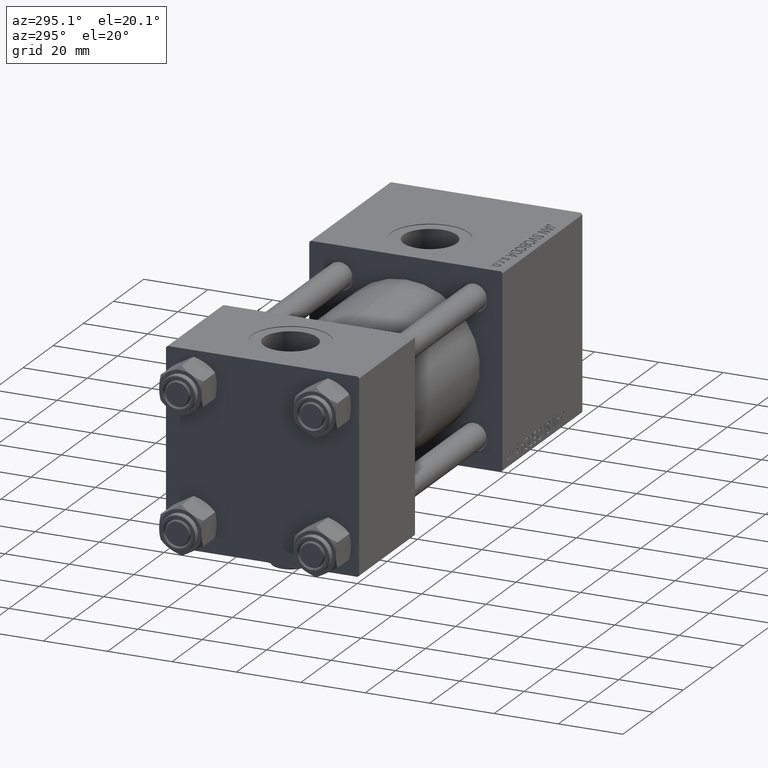
[diagram: clean part render]
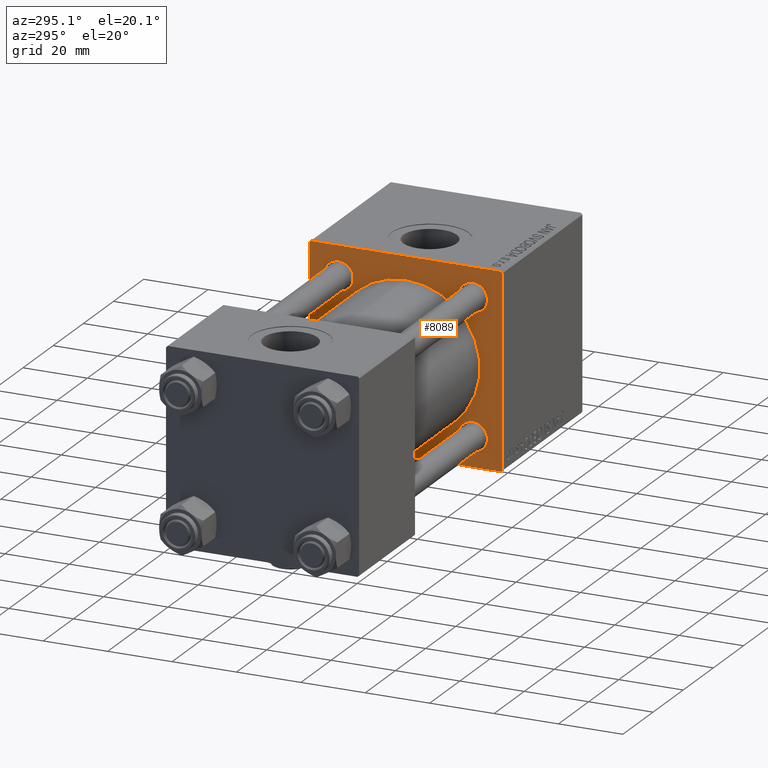
[diagram: same view with one face highlighted and labeled with its STEP entity id]
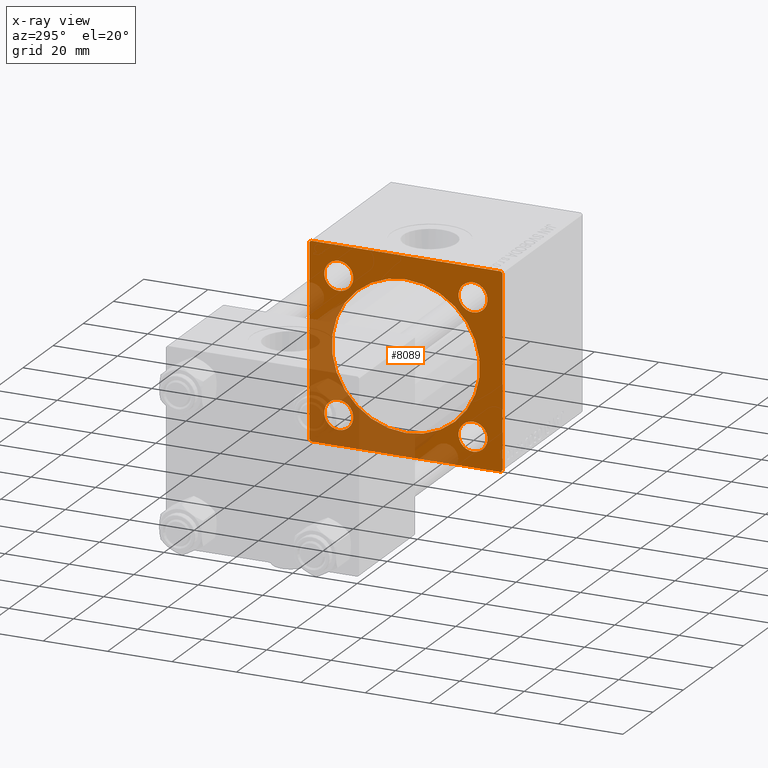
[diagram: x-ray of the same camera — body ghosted, the highlighted face saturated]
A machine part, auxiliary view. The second image highlights one B-rep face of the part: STEP entity #8089.
The next image is the same camera in x-ray: the body ghosted, the highlighted face saturated — about 36% of this face is hidden behind the body in this view.
In plain terms, the highlighted planar face has unit normal (-1, 0, 0).
Its self-contained STEP definition (entity closure, byte-faithful):
#2 = DIRECTION ( 'NONE',  ( 0.000000000000000000, -0.7071067811865474617, 0.7071067811865474617 ) ) ;
#22 = CIRCLE ( 'NONE', #20273, 23.00000000000000000 ) ;
#192 = ORIENTED_EDGE ( 'NONE', *, *, #16451, .T. ) ;
#356 = VERTEX_POINT ( 'NONE', #34967 ) ;
#1060 = CARTESIAN_POINT ( 'NONE',  ( 95.00000000000000000, 20.84999999999999787, 20.85000000000000142 ) ) ;
#1199 = CARTESIAN_POINT ( 'NONE',  ( 95.00000000000000000, 29.74999999999999645, 29.74999999999999645 ) ) ;
#1502 = LINE ( 'NONE', #25556, #11681 ) ;
#1533 = ORIENTED_EDGE ( 'NONE', *, *, #49053, .T. ) ;
#2451 = PLANE ( 'NONE',  #42088 ) ;
#2973 = FACE_BOUND ( 'NONE', #32806, .T. ) ;
#3077 = CARTESIAN_POINT ( 'NONE',  ( 95.00000000000000000, -20.84999999999999076, 25.35000000000001208 ) ) ;
#3202 = DIRECTION ( 'NONE',  ( 0.000000000000000000, 0.000000000000000000, 1.000000000000000000 ) ) ;
#5084 = DIRECTION ( 'NONE',  ( 0.000000000000000000, 0.000000000000000000, 1.000000000000000000 ) ) ;
#5185 = VECTOR ( 'NONE', #6116, 1000.000000000000000 ) ;
#6116 = DIRECTION ( 'NONE',  ( 0.000000000000000000, -1.000000000000000000, -1.156482317317871478E-16 ) ) ;
#6804 = ORIENTED_EDGE ( 'NONE', *, *, #45683, .T. ) ;
#6965 = CARTESIAN_POINT ( 'NONE',  ( 95.00000000000000000, -29.74999999999999645, 29.74999999999999645 ) ) ;
#6977 = EDGE_CURVE ( 'NONE', #23917, #11307, #46273, .T. ) ;
#7063 = ORIENTED_EDGE ( 'NONE', *, *, #11507, .T. ) ;
#7789 = VERTEX_POINT ( 'NONE', #28910 ) ;
#8089 = ADVANCED_FACE ( 'NONE', ( #38911, #46850, #2973, #39699, #26508, #26760 ), #2451, .T. ) ;
#8242 = VERTEX_POINT ( 'NONE', #21954 ) ;
#8765 = CARTESIAN_POINT ( 'NONE',  ( 95.00000000000000000, 20.84999999999999787, 25.35000000000000853 ) ) ;
#9062 = CARTESIAN_POINT ( 'NONE',  ( 95.00000000000000000, 30.00000000000000000, 29.50000000000000000 ) ) ;
#9373 = CIRCLE ( 'NONE', #33847, 4.500000000000007105 ) ;
#9432 = CARTESIAN_POINT ( 'NONE',  ( 95.00000000000000000, 30.00000000000000000, -29.99999999999999289 ) ) ;
#9612 = DIRECTION ( 'NONE',  ( 0.000000000000000000, 0.000000000000000000, -1.000000000000000000 ) ) ;
#9949 = LINE ( 'NONE', #9432, #50004 ) ;
#10025 = AXIS2_PLACEMENT_3D ( 'NONE', #31621, #27397, #39289 ) ;
#10425 = EDGE_CURVE ( 'NONE', #34446, #26097, #1502, .T. ) ;
#10651 = CARTESIAN_POINT ( 'NONE',  ( 95.00000000000000000, 0.000000000000000000, 0.000000000000000000 ) ) ;
#10894 = DIRECTION ( 'NONE',  ( 0.000000000000000000, 0.000000000000000000, 1.000000000000000000 ) ) ;
#11063 = DIRECTION ( 'NONE',  ( 0.000000000000000000, 0.000000000000000000, -1.000000000000000000 ) ) ;
#11307 = VERTEX_POINT ( 'NONE', #33497 ) ;
#11507 = EDGE_CURVE ( 'NONE', #45361, #39435, #18465, .T. ) ;
#11681 = VECTOR ( 'NONE', #50138, 1000.000000000000000 ) ;
#11842 = CARTESIAN_POINT ( 'NONE',  ( 95.00000000000000000, -29.50000000000000000, 29.99999999999999289 ) ) ;
#12393 = ORIENTED_EDGE ( 'NONE', *, *, #6977, .T. ) ;
#13361 = EDGE_CURVE ( 'NONE', #39974, #25262, #18595, .T. ) ;
#13779 = AXIS2_PLACEMENT_3D ( 'NONE', #17263, #45537, #25444 ) ;
#14461 = AXIS2_PLACEMENT_3D ( 'NONE', #48442, #36798, #5084 ) ;
#14650 = VECTOR ( 'NONE', #46638, 1000.000000000000114 ) ;
#14797 = ORIENTED_EDGE ( 'NONE', *, *, #26251, .T. ) ;
#14861 = DIRECTION ( 'NONE',  ( -1.000000000000000000, 0.000000000000000000, -0.000000000000000000 ) ) ;
#15220 = AXIS2_PLACEMENT_3D ( 'NONE', #19319, #30710, #3202 ) ;
#15319 = ORIENTED_EDGE ( 'NONE', *, *, #34786, .T. ) ;
#16008 = VERTEX_POINT ( 'NONE', #29274 ) ;
#16168 = ORIENTED_EDGE ( 'NONE', *, *, #32788, .T. ) ;
#16451 = EDGE_CURVE ( 'NONE', #50720, #16008, #38872, .T. ) ;
#17148 = CARTESIAN_POINT ( 'NONE',  ( 95.00000000000000000, 30.00000000000000000, -29.49999999999997868 ) ) ;
#17263 = CARTESIAN_POINT ( 'NONE',  ( 95.00000000000000000, -20.84999999999999076, 20.85000000000000497 ) ) ;
#17615 = ORIENTED_EDGE ( 'NONE', *, *, #13361, .T. ) ;
#17908 = ORIENTED_EDGE ( 'NONE', *, *, #48794, .T. ) ;
#18271 = CARTESIAN_POINT ( 'NONE',  ( 95.00000000000000000, 30.00000000000000000, 30.00000000000000000 ) ) ;
#18465 = CIRCLE ( 'NONE', #10025, 4.500000000000007105 ) ;
#18595 = LINE ( 'NONE', #6965, #51420 ) ;
#18808 = CARTESIAN_POINT ( 'NONE',  ( 95.00000000000000000, -2.602085213965210642E-15, 23.00000000000000000 ) ) ;
#18826 = CIRCLE ( 'NONE', #31515, 4.500000000000007105 ) ;
#19319 = CARTESIAN_POINT ( 'NONE',  ( 95.00000000000000000, 20.84999999999999787, 20.85000000000000142 ) ) ;
#19379 = CARTESIAN_POINT ( 'NONE',  ( 95.00000000000000000, 20.84999999999999787, -16.34999999999999432 ) ) ;
#19449 = CARTESIAN_POINT ( 'NONE',  ( 95.00000000000000000, 20.84999999999999787, -25.35000000000000853 ) ) ;
#19588 = CARTESIAN_POINT ( 'NONE',  ( 95.00000000000000000, 29.50000000000000000, -29.99999999999999289 ) ) ;
#19736 = EDGE_LOOP ( 'NONE', ( #35276, #40863, #34611, #17615, #49199, #14797, #42695, #28015 ) ) ;
#19824 = EDGE_LOOP ( 'NONE', ( #6804, #12393 ) ) ;
#19986 = VERTEX_POINT ( 'NONE', #35360 ) ;
#20273 = AXIS2_PLACEMENT_3D ( 'NONE', #26684, #23236, #50467 ) ;
#21146 = DIRECTION ( 'NONE',  ( 0.000000000000000000, 0.000000000000000000, 1.000000000000000000 ) ) ;
#21954 = CARTESIAN_POINT ( 'NONE',  ( 95.00000000000000000, -30.00000000000000000, -29.49999999999998579 ) ) ;
#22242 = CARTESIAN_POINT ( 'NONE',  ( 95.00000000000000000, 29.74999999999999645, -29.74999999999999645 ) ) ;
#22358 = VERTEX_POINT ( 'NONE', #18808 ) ;
#22532 = DIRECTION ( 'NONE',  ( -0.000000000000000000, 0.000000000000000000, 1.000000000000000000 ) ) ;
#22766 = CIRCLE ( 'NONE', #28691, 23.00000000000000000 ) ;
#23236 = DIRECTION ( 'NONE',  ( 1.000000000000000000, 0.000000000000000000, 0.000000000000000000 ) ) ;
#23753 = VECTOR ( 'NONE', #29401, 1000.000000000000114 ) ;
#23917 = VERTEX_POINT ( 'NONE', #34898 ) ;
#24552 = EDGE_CURVE ( 'NONE', #52196, #7789, #9949, .T. ) ;
#24948 = ORIENTED_EDGE ( 'NONE', *, *, #39744, .T. ) ;
#25262 = VERTEX_POINT ( 'NONE', #11842 ) ;
#25444 = DIRECTION ( 'NONE',  ( 0.000000000000000000, 0.000000000000000000, 1.000000000000000000 ) ) ;
#25556 = CARTESIAN_POINT ( 'NONE',  ( 95.00000000000000000, 30.00000000000000000, 30.00000000000000000 ) ) ;
#25770 = LINE ( 'NONE', #1199, #14650 ) ;
#26097 = VERTEX_POINT ( 'NONE', #17148 ) ;
#26251 = EDGE_CURVE ( 'NONE', #50673, #34446, #25770, .T. ) ;
#26475 = LINE ( 'NONE', #18271, #5185 ) ;
#26508 = FACE_BOUND ( 'NONE', #31060, .T. ) ;
#26512 = CARTESIAN_POINT ( 'NONE',  ( 95.00000000000000000, -30.00000000000000000, 29.99999999999999289 ) ) ;
#26684 = CARTESIAN_POINT ( 'NONE',  ( 95.00000000000000000, -2.602085213965210642E-15, 0.000000000000000000 ) ) ;
#26760 = FACE_OUTER_BOUND ( 'NONE', #19736, .T. ) ;
#27397 = DIRECTION ( 'NONE',  ( 1.000000000000000000, -0.000000000000000000, 0.000000000000000000 ) ) ;
#28015 = ORIENTED_EDGE ( 'NONE', *, *, #41489, .T. ) ;
#28297 = CARTESIAN_POINT ( 'NONE',  ( 95.00000000000000000, -20.84999999999999076, -20.85000000000000497 ) ) ;
#28691 = AXIS2_PLACEMENT_3D ( 'NONE', #35363, #52273, #11063 ) ;
#28910 = CARTESIAN_POINT ( 'NONE',  ( 95.00000000000000000, -29.50000000000000000, -30.00000000000000000 ) ) ;
#29091 = DIRECTION ( 'NONE',  ( 1.000000000000000000, -0.000000000000000000, 0.000000000000000000 ) ) ;
#29130 = EDGE_LOOP ( 'NONE', ( #192, #24948 ) ) ;
#29274 = CARTESIAN_POINT ( 'NONE',  ( 95.00000000000000000, 20.84999999999999787, 16.34999999999999432 ) ) ;
#29401 = DIRECTION ( 'NONE',  ( -0.000000000000000000, -0.7071067811865474617, -0.7071067811865474617 ) ) ;
#29423 = AXIS2_PLACEMENT_3D ( 'NONE', #51073, #47626, #10894 ) ;
#29820 = CIRCLE ( 'NONE', #13779, 4.500000000000007105 ) ;
#30008 = CARTESIAN_POINT ( 'NONE',  ( 95.00000000000000000, -20.84999999999999076, 20.85000000000000497 ) ) ;
#30212 = LINE ( 'NONE', #26512, #44211 ) ;
#30710 = DIRECTION ( 'NONE',  ( 1.000000000000000000, -0.000000000000000000, 0.000000000000000000 ) ) ;
#30776 = DIRECTION ( 'NONE',  ( -0.000000000000000000, 0.7071067811865474617, 0.7071067811865474617 ) ) ;
#31060 = EDGE_LOOP ( 'NONE', ( #15319, #16168 ) ) ;
#31366 = CIRCLE ( 'NONE', #14461, 4.500000000000007105 ) ;
#31515 = AXIS2_PLACEMENT_3D ( 'NONE', #28297, #49424, #45451 ) ;
#31621 = CARTESIAN_POINT ( 'NONE',  ( 95.00000000000000000, 20.84999999999999787, -20.85000000000000142 ) ) ;
#32752 = LINE ( 'NONE', #36198, #47256 ) ;
#32788 = EDGE_CURVE ( 'NONE', #356, #22358, #22766, .T. ) ;
#32806 = EDGE_LOOP ( 'NONE', ( #7063, #36635 ) ) ;
#33497 = CARTESIAN_POINT ( 'NONE',  ( 95.00000000000000000, -20.84999999999999076, -16.34999999999999787 ) ) ;
#33847 = AXIS2_PLACEMENT_3D ( 'NONE', #1060, #29091, #21146 ) ;
#34255 = DIRECTION ( 'NONE',  ( 0.000000000000000000, -1.000000000000000000, -1.156482317317871478E-16 ) ) ;
#34446 = VERTEX_POINT ( 'NONE', #9062 ) ;
#34611 = ORIENTED_EDGE ( 'NONE', *, *, #50271, .F. ) ;
#34786 = EDGE_CURVE ( 'NONE', #22358, #356, #22, .T. ) ;
#34898 = CARTESIAN_POINT ( 'NONE',  ( 95.00000000000000000, -20.84999999999999076, -25.35000000000001208 ) ) ;
#34967 = CARTESIAN_POINT ( 'NONE',  ( 95.00000000000000000, 2.146024240737012665E-16, -23.00000000000000000 ) ) ;
#35276 = ORIENTED_EDGE ( 'NONE', *, *, #24552, .T. ) ;
#35360 = CARTESIAN_POINT ( 'NONE',  ( 95.00000000000000000, -20.84999999999999076, 16.34999999999999787 ) ) ;
#35363 = CARTESIAN_POINT ( 'NONE',  ( 95.00000000000000000, -2.602085213965210642E-15, 0.000000000000000000 ) ) ;
#36198 = CARTESIAN_POINT ( 'NONE',  ( 95.00000000000000000, -29.74999999999999645, -29.74999999999999645 ) ) ;
#36248 = CARTESIAN_POINT ( 'NONE',  ( 95.00000000000000000, 29.50000000000000000, 30.00000000000000000 ) ) ;
#36559 = AXIS2_PLACEMENT_3D ( 'NONE', #30008, #42156, #37671 ) ;
#36635 = ORIENTED_EDGE ( 'NONE', *, *, #41352, .T. ) ;
#36798 = DIRECTION ( 'NONE',  ( 1.000000000000000000, -0.000000000000000000, 0.000000000000000000 ) ) ;
#37437 = CARTESIAN_POINT ( 'NONE',  ( 95.00000000000000000, -30.00000000000000000, 29.49999999999999289 ) ) ;
#37671 = DIRECTION ( 'NONE',  ( 0.000000000000000000, 0.000000000000000000, 1.000000000000000000 ) ) ;
#38047 = EDGE_CURVE ( 'NONE', #7789, #8242, #32752, .T. ) ;
#38872 = CIRCLE ( 'NONE', #15220, 4.500000000000007105 ) ;
#38911 = FACE_BOUND ( 'NONE', #38917, .T. ) ;
#38917 = EDGE_LOOP ( 'NONE', ( #1533, #17908 ) ) ;
#39289 = DIRECTION ( 'NONE',  ( 0.000000000000000000, 0.000000000000000000, 1.000000000000000000 ) ) ;
#39435 = VERTEX_POINT ( 'NONE', #19449 ) ;
#39699 = FACE_BOUND ( 'NONE', #19824, .T. ) ;
#39744 = EDGE_CURVE ( 'NONE', #16008, #50720, #9373, .T. ) ;
#39974 = VERTEX_POINT ( 'NONE', #37437 ) ;
#40863 = ORIENTED_EDGE ( 'NONE', *, *, #38047, .T. ) ;
#41352 = EDGE_CURVE ( 'NONE', #39435, #45361, #31366, .T. ) ;
#41456 = EDGE_CURVE ( 'NONE', #50673, #25262, #26475, .T. ) ;
#41489 = EDGE_CURVE ( 'NONE', #26097, #52196, #41809, .T. ) ;
#41809 = LINE ( 'NONE', #22242, #23753 ) ;
#42088 = AXIS2_PLACEMENT_3D ( 'NONE', #10651, #14861, #22532 ) ;
#42156 = DIRECTION ( 'NONE',  ( 1.000000000000000000, -0.000000000000000000, 0.000000000000000000 ) ) ;
#42695 = ORIENTED_EDGE ( 'NONE', *, *, #10425, .T. ) ;
#44139 = CIRCLE ( 'NONE', #36559, 4.500000000000007105 ) ;
#44211 = VECTOR ( 'NONE', #9612, 1000.000000000000000 ) ;
#45361 = VERTEX_POINT ( 'NONE', #19379 ) ;
#45451 = DIRECTION ( 'NONE',  ( 0.000000000000000000, 0.000000000000000000, 1.000000000000000000 ) ) ;
#45537 = DIRECTION ( 'NONE',  ( 1.000000000000000000, -0.000000000000000000, 0.000000000000000000 ) ) ;
#45683 = EDGE_CURVE ( 'NONE', #11307, #23917, #18826, .T. ) ;
#46273 = CIRCLE ( 'NONE', #29423, 4.500000000000007105 ) ;
#46326 = VERTEX_POINT ( 'NONE', #3077 ) ;
#46638 = DIRECTION ( 'NONE',  ( 0.000000000000000000, 0.7071067811865474617, -0.7071067811865474617 ) ) ;
#46850 = FACE_BOUND ( 'NONE', #29130, .T. ) ;
#47256 = VECTOR ( 'NONE', #2, 1000.000000000000114 ) ;
#47626 = DIRECTION ( 'NONE',  ( 1.000000000000000000, -0.000000000000000000, 0.000000000000000000 ) ) ;
#48442 = CARTESIAN_POINT ( 'NONE',  ( 95.00000000000000000, 20.84999999999999787, -20.85000000000000142 ) ) ;
#48794 = EDGE_CURVE ( 'NONE', #19986, #46326, #44139, .T. ) ;
#49053 = EDGE_CURVE ( 'NONE', #46326, #19986, #29820, .T. ) ;
#49199 = ORIENTED_EDGE ( 'NONE', *, *, #41456, .F. ) ;
#49424 = DIRECTION ( 'NONE',  ( 1.000000000000000000, -0.000000000000000000, 0.000000000000000000 ) ) ;
#50004 = VECTOR ( 'NONE', #34255, 1000.000000000000000 ) ;
#50138 = DIRECTION ( 'NONE',  ( 0.000000000000000000, 0.000000000000000000, -1.000000000000000000 ) ) ;
#50271 = EDGE_CURVE ( 'NONE', #39974, #8242, #30212, .T. ) ;
#50467 = DIRECTION ( 'NONE',  ( 0.000000000000000000, 0.000000000000000000, -1.000000000000000000 ) ) ;
#50673 = VERTEX_POINT ( 'NONE', #36248 ) ;
#50720 = VERTEX_POINT ( 'NONE', #8765 ) ;
#51073 = CARTESIAN_POINT ( 'NONE',  ( 95.00000000000000000, -20.84999999999999076, -20.85000000000000497 ) ) ;
#51420 = VECTOR ( 'NONE', #30776, 1000.000000000000114 ) ;
#52196 = VERTEX_POINT ( 'NONE', #19588 ) ;
#52273 = DIRECTION ( 'NONE',  ( 1.000000000000000000, 0.000000000000000000, 0.000000000000000000 ) ) ;